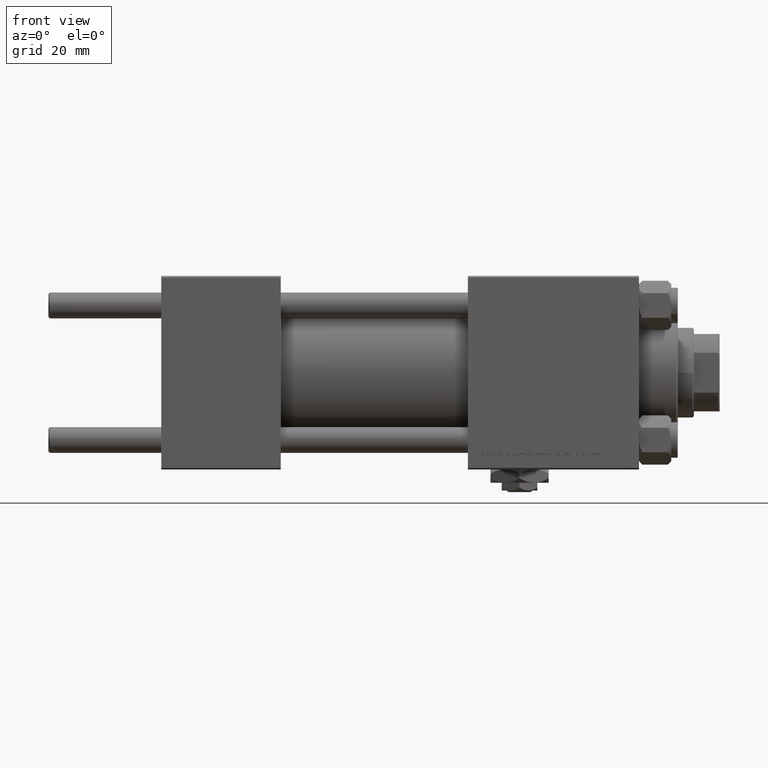
[diagram: clean part render]
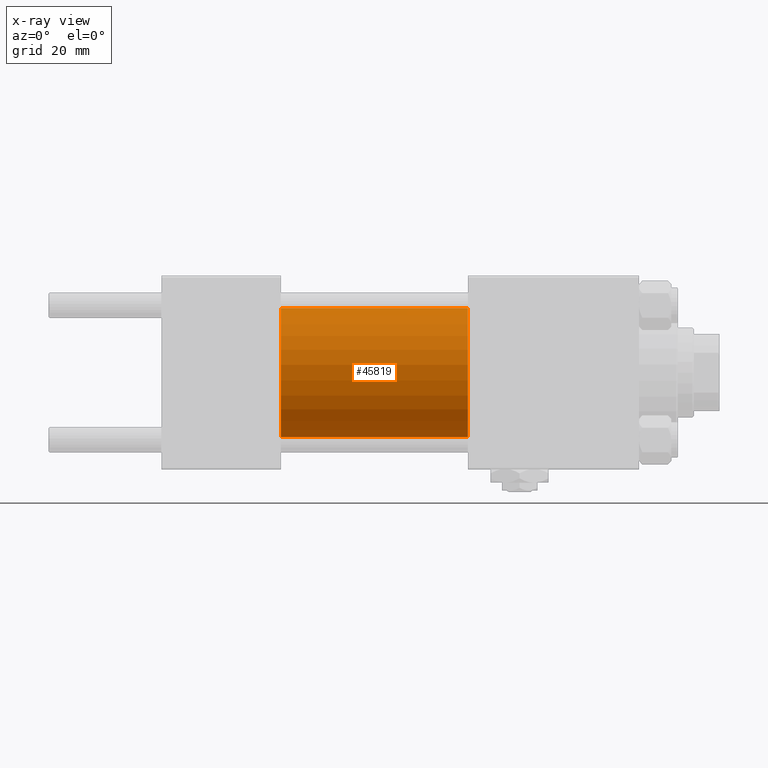
[diagram: x-ray — body ghosted, one internal face saturated and labeled with its STEP entity id]
A machine part, front view, then the same camera in x-ray: the body is ghosted and one INTERNAL B-rep face — a face not visible from any outside direction — is saturated and labeled: STEP entity #45819.
In plain terms, the highlighted cylindrical surface (partial cylindrical patch) has radius 20 mm, axis along (-1, -0, -0).
Its self-contained STEP definition (entity closure, byte-faithful):
#1470 = CARTESIAN_POINT ( 'NONE',  ( 95.00000000000000000, 0.000000000000000000, 0.000000000000000000 ) ) ;
#2126 = CARTESIAN_POINT ( 'NONE',  ( 95.00000000000000000, 0.000000000000000000, 0.000000000000000000 ) ) ;
#3431 = ORIENTED_EDGE ( 'NONE', *, *, #33283, .T. ) ;
#4282 = LINE ( 'NONE', #36620, #11823 ) ;
#5791 = CYLINDRICAL_SURFACE ( 'NONE', #17312, 20.00000000000000000 ) ;
#6087 = EDGE_CURVE ( 'NONE', #19631, #31608, #37264, .T. ) ;
#8265 = ORIENTED_EDGE ( 'NONE', *, *, #29012, .T. ) ;
#11594 = DIRECTION ( 'NONE',  ( -1.000000000000000000, -0.000000000000000000, -0.000000000000000000 ) ) ;
#11823 = VECTOR ( 'NONE', #11594, 1000.000000000000000 ) ;
#13138 = AXIS2_PLACEMENT_3D ( 'NONE', #39661, #50637, #15404 ) ;
#14974 = CIRCLE ( 'NONE', #36658, 20.00000000000000000 ) ;
#15298 = CARTESIAN_POINT ( 'NONE',  ( 95.00000000000000000, 2.449293598294706119E-15, -20.00000000000000000 ) ) ;
#15404 = DIRECTION ( 'NONE',  ( 0.000000000000000000, 0.000000000000000000, -1.000000000000000000 ) ) ;
#16623 = DIRECTION ( 'NONE',  ( 1.000000000000000000, 0.000000000000000000, 0.000000000000000000 ) ) ;
#17312 = AXIS2_PLACEMENT_3D ( 'NONE', #2126, #41530, #41273 ) ;
#17379 = DIRECTION ( 'NONE',  ( 0.000000000000000000, 0.000000000000000000, -1.000000000000000000 ) ) ;
#18716 = CARTESIAN_POINT ( 'NONE',  ( 95.00000000000000000, 0.000000000000000000, 20.00000000000000000 ) ) ;
#19631 = VERTEX_POINT ( 'NONE', #47999 ) ;
#21133 = CARTESIAN_POINT ( 'NONE',  ( 37.00000000000000000, 2.449293598294706119E-15, -20.00000000000000000 ) ) ;
#21767 = VERTEX_POINT ( 'NONE', #18716 ) ;
#23051 = LINE ( 'NONE', #23831, #31544 ) ;
#23657 = ORIENTED_EDGE ( 'NONE', *, *, #6087, .F. ) ;
#23831 = CARTESIAN_POINT ( 'NONE',  ( 95.00000000000000000, 0.000000000000000000, 20.00000000000000000 ) ) ;
#24894 = EDGE_LOOP ( 'NONE', ( #8265, #3431, #23657, #35500 ) ) ;
#25755 = EDGE_CURVE ( 'NONE', #21767, #19631, #23051, .T. ) ;
#29012 = EDGE_CURVE ( 'NONE', #21767, #32005, #14974, .T. ) ;
#31398 = DIRECTION ( 'NONE',  ( -1.000000000000000000, -0.000000000000000000, -0.000000000000000000 ) ) ;
#31544 = VECTOR ( 'NONE', #31398, 1000.000000000000000 ) ;
#31608 = VERTEX_POINT ( 'NONE', #21133 ) ;
#32005 = VERTEX_POINT ( 'NONE', #15298 ) ;
#33283 = EDGE_CURVE ( 'NONE', #32005, #31608, #4282, .T. ) ;
#35500 = ORIENTED_EDGE ( 'NONE', *, *, #25755, .F. ) ;
#36620 = CARTESIAN_POINT ( 'NONE',  ( 95.00000000000000000, 2.449293598294706119E-15, -20.00000000000000000 ) ) ;
#36658 = AXIS2_PLACEMENT_3D ( 'NONE', #1470, #16623, #17379 ) ;
#37264 = CIRCLE ( 'NONE', #13138, 20.00000000000000000 ) ;
#39661 = CARTESIAN_POINT ( 'NONE',  ( 37.00000000000000000, 0.000000000000000000, 0.000000000000000000 ) ) ;
#41273 = DIRECTION ( 'NONE',  ( 0.000000000000000000, 0.000000000000000000, 1.000000000000000000 ) ) ;
#41530 = DIRECTION ( 'NONE',  ( -1.000000000000000000, -0.000000000000000000, -0.000000000000000000 ) ) ;
#42032 = FACE_OUTER_BOUND ( 'NONE', #24894, .T. ) ;
#45819 = ADVANCED_FACE ( 'NONE', ( #42032 ), #5791, .F. ) ;
#47999 = CARTESIAN_POINT ( 'NONE',  ( 37.00000000000000000, 0.000000000000000000, 20.00000000000000000 ) ) ;
#50637 = DIRECTION ( 'NONE',  ( 1.000000000000000000, 0.000000000000000000, 0.000000000000000000 ) ) ;